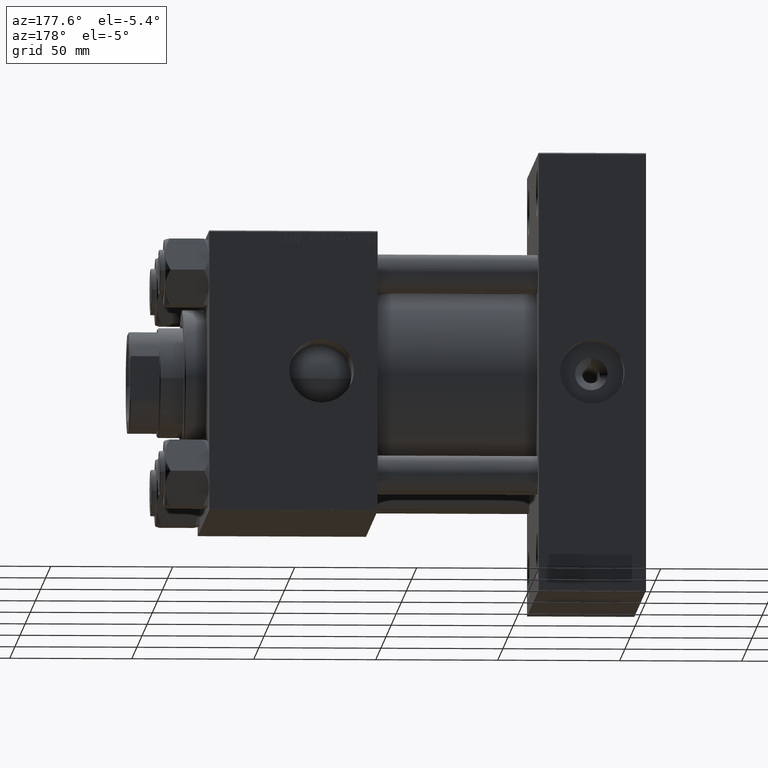
[diagram: clean part render]
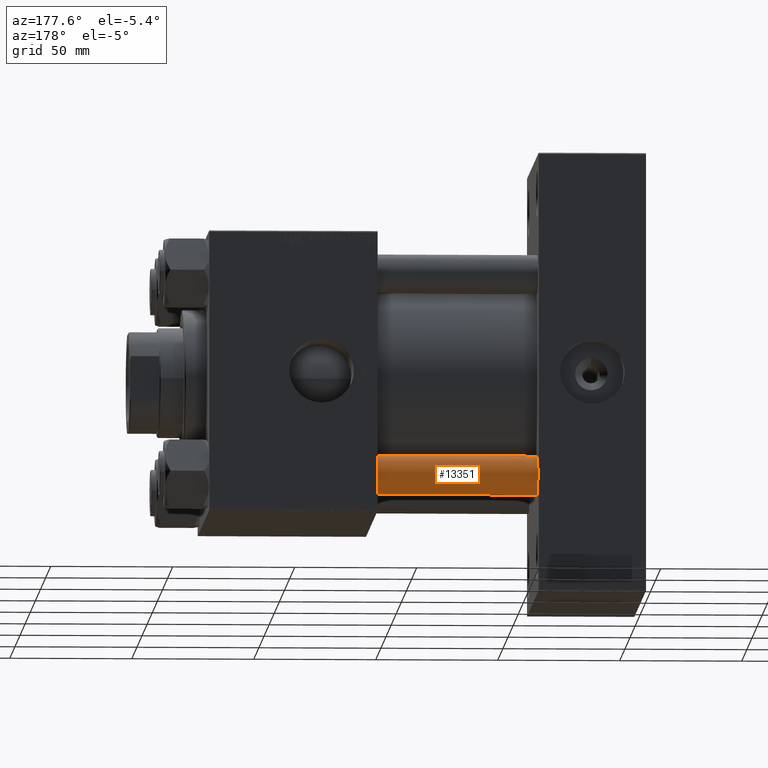
[diagram: same view with one face highlighted and labeled with its STEP entity id]
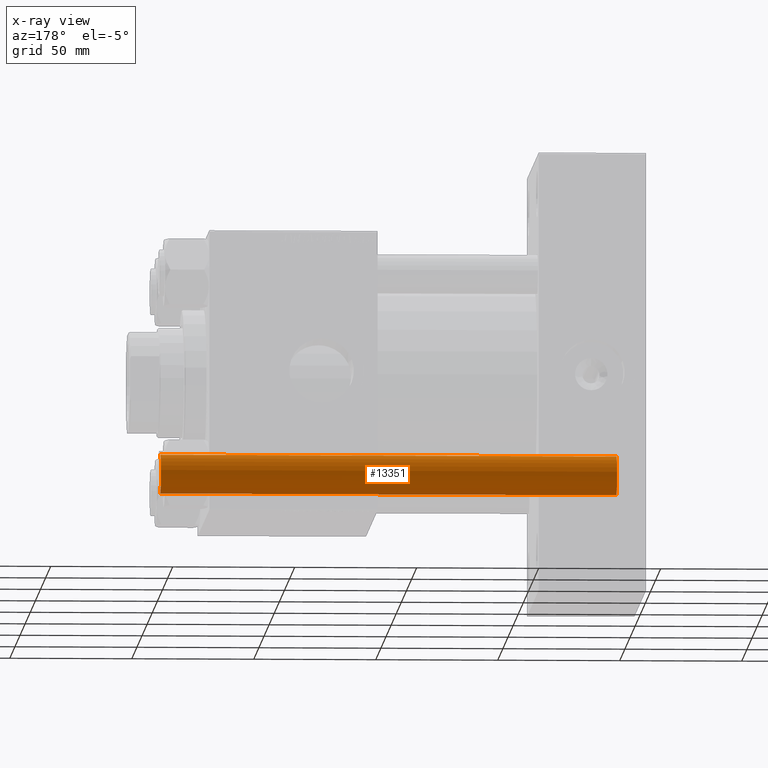
[diagram: x-ray of the same camera — body ghosted, the highlighted face saturated]
A machine part, auxiliary view. The second image highlights one B-rep face of the part: STEP entity #13351.
The next image is the same camera in x-ray: the body ghosted, the highlighted face saturated — about 0% of this face is hidden behind the body in this view.
In plain terms, the highlighted cylindrical surface (edge-blend (fillet) strip) has radius 8 mm, axis along (-1, 0, 0).
Its self-contained STEP definition (entity closure, byte-faithful):
#1046 = EDGE_CURVE ( 'NONE', #45352, #17932, #17705, .T. ) ;
#2215 = CARTESIAN_POINT ( 'NONE',  ( 0.000000000000000000, 0.000000000000000000, 187.5000000000000284 ) ) ;
#2260 = ORIENTED_EDGE ( 'NONE', *, *, #1046, .T. ) ;
#4910 = DIRECTION ( 'NONE',  ( -1.000000000000000000, 0.000000000000000000, 0.000000000000000000 ) ) ;
#5036 = CARTESIAN_POINT ( 'NONE',  ( 8.000000000000000000, 9.797174393178825657E-16, 0.5000000000000004441 ) ) ;
#5323 = DIRECTION ( 'NONE',  ( -0.000000000000000000, -0.000000000000000000, -1.000000000000000000 ) ) ;
#5777 = DIRECTION ( 'NONE',  ( 0.000000000000000000, 0.000000000000000000, -1.000000000000000000 ) ) ;
#6327 = CIRCLE ( 'NONE', #48662, 8.000000000000000000 ) ;
#6990 = CARTESIAN_POINT ( 'NONE',  ( -8.000000000000000000, 0.000000000000000000, 188.0000000000000000 ) ) ;
#7280 = EDGE_CURVE ( 'NONE', #17932, #27208, #17319, .T. ) ;
#8682 = ORIENTED_EDGE ( 'NONE', *, *, #7280, .T. ) ;
#9154 = CARTESIAN_POINT ( 'NONE',  ( 8.000000000000000000, 9.797174393178825657E-16, 188.0000000000000000 ) ) ;
#13231 = LINE ( 'NONE', #9154, #46152 ) ;
#13351 = ADVANCED_FACE ( 'NONE', ( #20719 ), #47240, .T. ) ;
#14919 = ORIENTED_EDGE ( 'NONE', *, *, #47540, .F. ) ;
#15156 = CARTESIAN_POINT ( 'NONE',  ( 8.000000000000000000, 9.797174393178825657E-16, 187.5000000000000284 ) ) ;
#16129 = DIRECTION ( 'NONE',  ( -0.000000000000000000, -0.000000000000000000, -1.000000000000000000 ) ) ;
#17319 = CIRCLE ( 'NONE', #45870, 8.000000000000000000 ) ;
#17705 = LINE ( 'NONE', #6990, #24462 ) ;
#17932 = VERTEX_POINT ( 'NONE', #20278 ) ;
#17957 = DIRECTION ( 'NONE',  ( -0.000000000000000000, -0.000000000000000000, -1.000000000000000000 ) ) ;
#20278 = CARTESIAN_POINT ( 'NONE',  ( -8.000000000000000000, 0.000000000000000000, 0.5000000000000004441 ) ) ;
#20719 = FACE_OUTER_BOUND ( 'NONE', #22598, .T. ) ;
#21061 = CARTESIAN_POINT ( 'NONE',  ( -8.000000000000000000, 0.000000000000000000, 187.5000000000000284 ) ) ;
#22107 = VERTEX_POINT ( 'NONE', #15156 ) ;
#22233 = DIRECTION ( 'NONE',  ( 1.000000000000000000, 0.000000000000000000, 0.000000000000000000 ) ) ;
#22598 = EDGE_LOOP ( 'NONE', ( #14919, #46030, #2260, #8682 ) ) ;
#24462 = VECTOR ( 'NONE', #17957, 1000.000000000000000 ) ;
#27208 = VERTEX_POINT ( 'NONE', #5036 ) ;
#27635 = CARTESIAN_POINT ( 'NONE',  ( 0.000000000000000000, 0.000000000000000000, 188.0000000000000000 ) ) ;
#29896 = DIRECTION ( 'NONE',  ( -0.000000000000000000, -0.000000000000000000, 1.000000000000000000 ) ) ;
#32515 = AXIS2_PLACEMENT_3D ( 'NONE', #27635, #16129, #4910 ) ;
#33964 = CARTESIAN_POINT ( 'NONE',  ( 0.000000000000000000, 0.000000000000000000, 0.5000000000000004441 ) ) ;
#36896 = DIRECTION ( 'NONE',  ( 1.000000000000000000, 0.000000000000000000, 0.000000000000000000 ) ) ;
#45352 = VERTEX_POINT ( 'NONE', #21061 ) ;
#45870 = AXIS2_PLACEMENT_3D ( 'NONE', #33964, #29896, #22233 ) ;
#46030 = ORIENTED_EDGE ( 'NONE', *, *, #49667, .T. ) ;
#46152 = VECTOR ( 'NONE', #5323, 1000.000000000000000 ) ;
#47240 = CYLINDRICAL_SURFACE ( 'NONE', #32515, 8.000000000000000000 ) ;
#47540 = EDGE_CURVE ( 'NONE', #22107, #27208, #13231, .T. ) ;
#48662 = AXIS2_PLACEMENT_3D ( 'NONE', #2215, #5777, #36896 ) ;
#49667 = EDGE_CURVE ( 'NONE', #22107, #45352, #6327, .T. ) ;